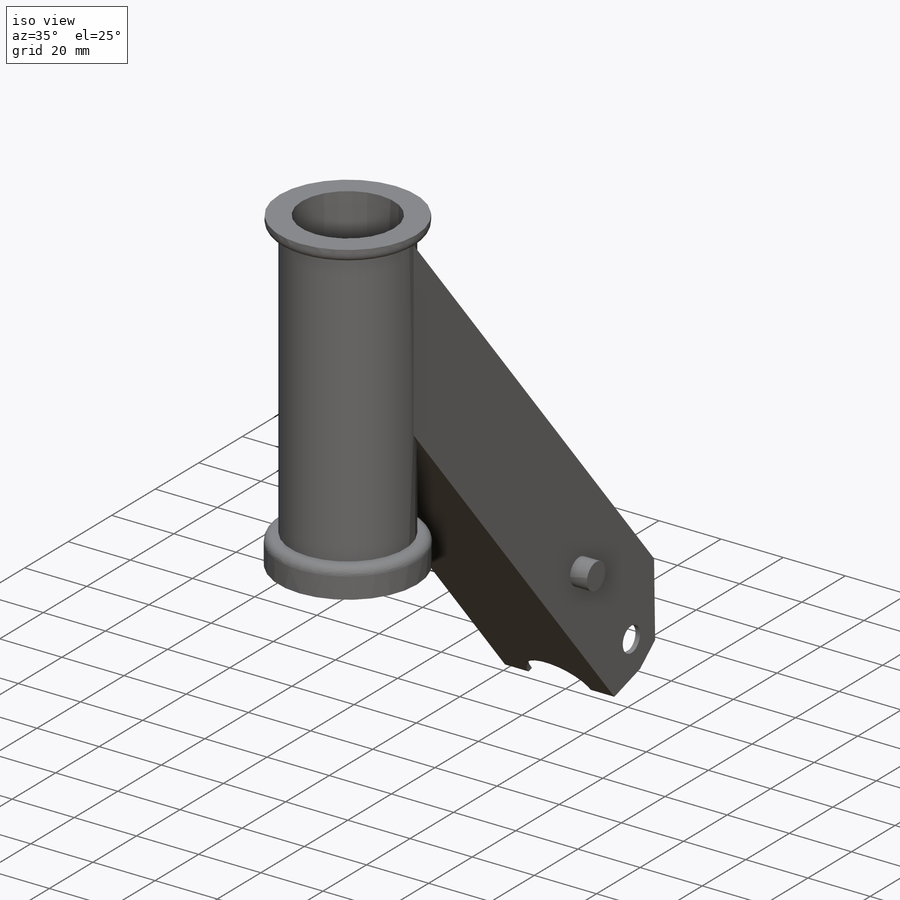
[diagram: iso view]
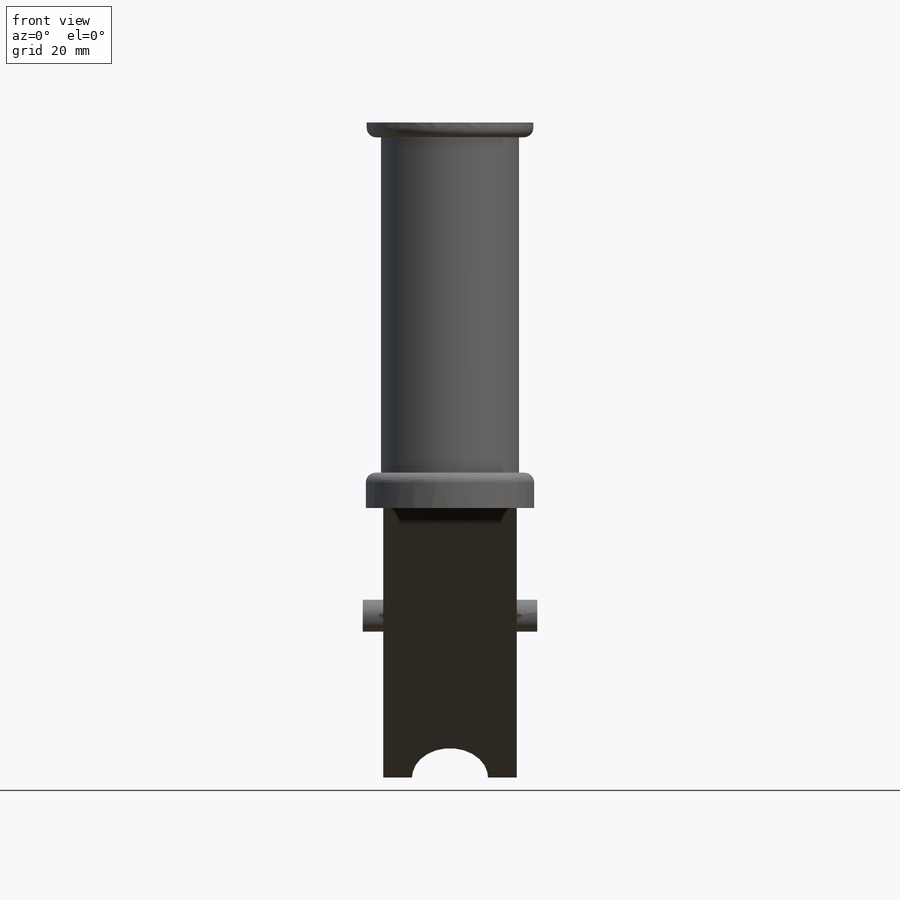
[diagram: front view]
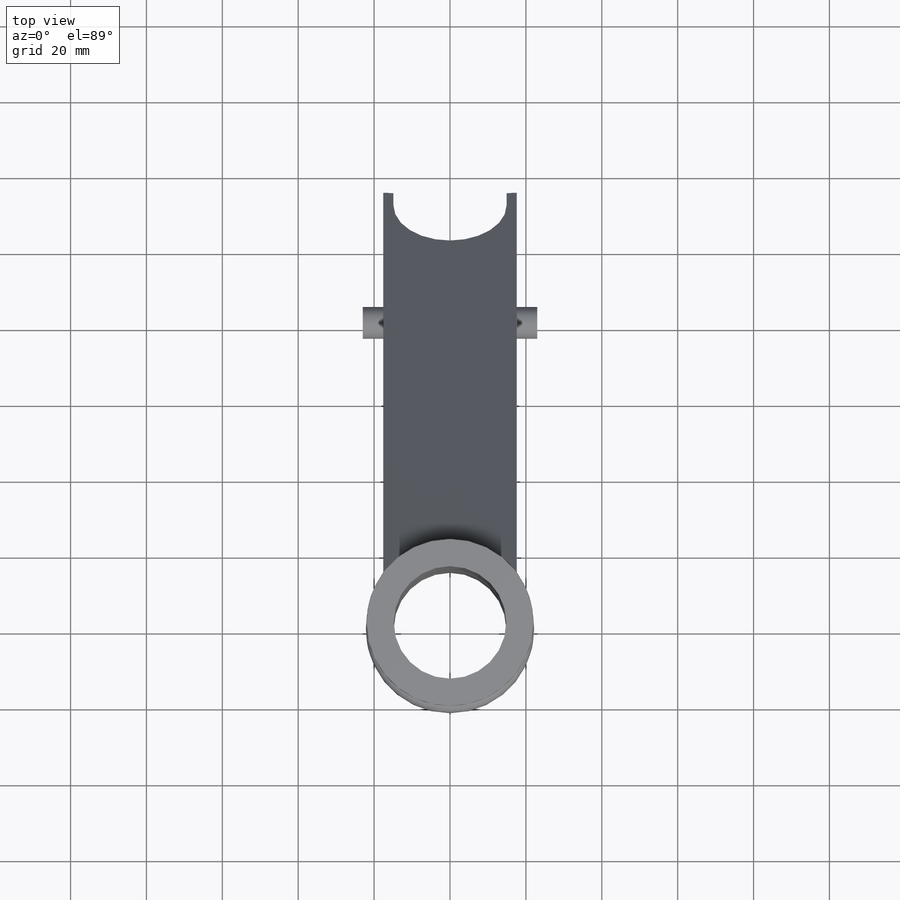
[diagram: top view]
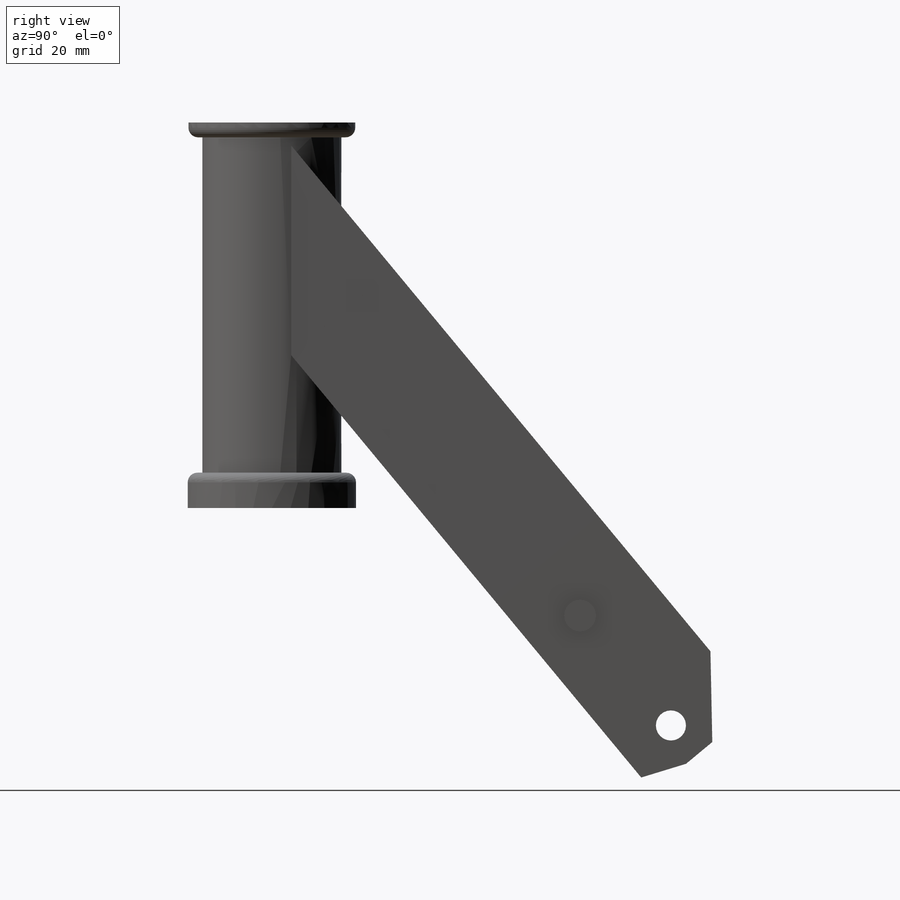
[diagram: right view]
SOLIDWORKS PART (.sldprt)
format: sldprt  version: not decoded by parser v0  size: 254,976 bytes
history: native  units: mm
features: sketch x7, cut_extrude x4, extrude x2, material x1, revolve x1, mirror x1 (+11 scaffold rows collapsed)
feature tree (27):
  scaffold x11  (default folders/planes/origin — collapsed)
  material  "Material <not specified>"
  sketch  "Sketch3"  dims[D3=2.54mm D8=2.54mm D1=22.1742mm D2=9.3218mm D4=18.3134mm D5=21.971mm D6=101.6mm D7=3.9116mm]
  revolve  "Revolve1"  Angle=360deg
  sketch  "Sketch4"  dims[D10=7.9375mm D1=35.2679mm D2=~18.31975mm D3=22.0091mm D4=38.481mm D5=152.4mm D6=18.7198mm D7=14.8844mm D8=8.9916mm D9=12.3444mm D11=~14.77645mm D12=~10.31875mm]
  extrude  "Boss-Extrude1"  Depth=35.179mm
  sketch  "Sketch5"  dims[D1=1.4605mm D2=1.4605mm D3=1.4605mm D4=1.4605mm]
  cut_extrude  "Cut-Extrude1"  Depth=149.479mm
  sketch  "Sketch6"  dims[D1=14.9225mm D2=5.0673mm]
  cut_extrude  "Cut-Extrude2"  [1 undecoded]
  sketch  "Sketch7"  dims[D1=10.0076mm]
  cut_extrude  "Cut-Extrude3"  [1 undecoded]
  sketch  "Sketch8"  dims[D2=8.3947mm D1=~47.87265mm D3=14.7955mm]
  extrude  "Boss-Extrude2"  Depth=5.4102mm
  mirror  "Mirror1"
  sketch  "Sketch9"  dims[D1=29.6418mm]
  cut_extrude  "Cut-Extrude4"  [1 undecoded]
decode coverage: 11 of 15 modeling features carry decoded parameters
note: ~ marks probable driven/reference dimensions
note: 3 parameter values undecoded
summary: no parameter record found for 3 features
note: suppression state not decoded; provenance and decode notes live in map.json
